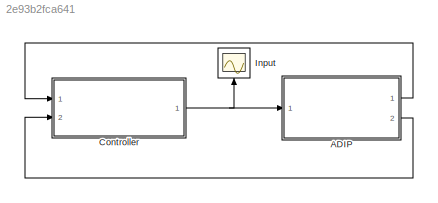
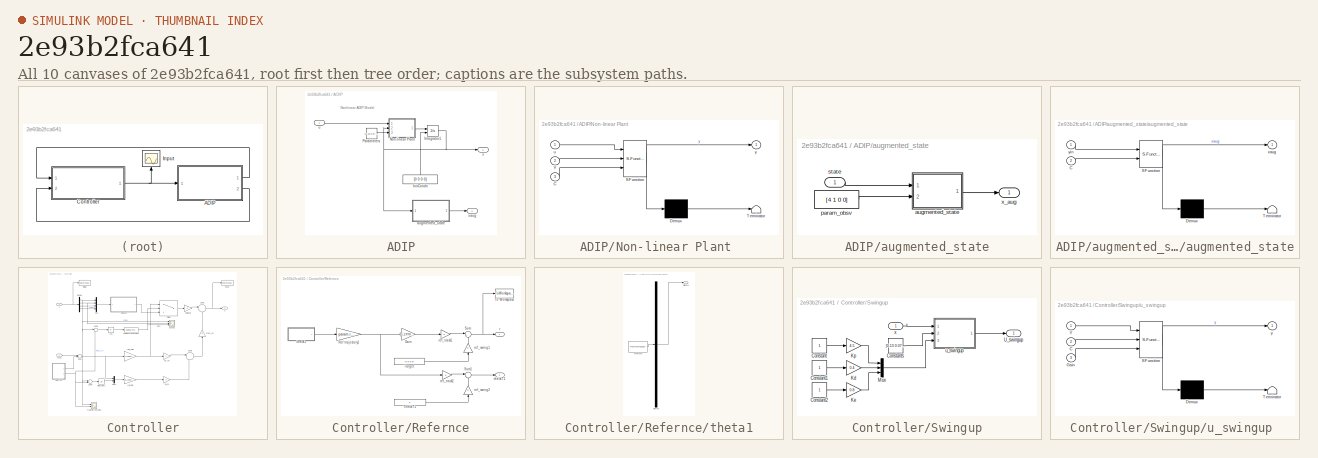
[diagram: thumbnail index - all 10 canvases of the model, root first then tree order]
MODEL slx_2e93b2fca641
KIND model
CONFIG AbsTol = auto
CONFIG EnableMultiTasking = off
CONFIG FixedStep = 0.005
CONFIG MaxStep = 0.2
CONFIG MinStep = auto
CONFIG RelTol = 1e-3
CONFIG SampleTimeConstraint = Unconstrained
CONFIG Solver = ode4
CONFIG SolverName = ode4
CONFIG StartTime = 0.0
CONFIG StopTime = 25
BLOCK [SubSystem] ADIP
  Ports = [1, 2]
  RequestExecContextInheritance = off
BLOCK [Constant] ADIP/InitCondn
  Value = [0 0 0 0]
BLOCK [Integrator] ADIP/Integrator1
  InitialCondition = param.theta0
  InitialConditionSource = external
  Ports = [2, 1]
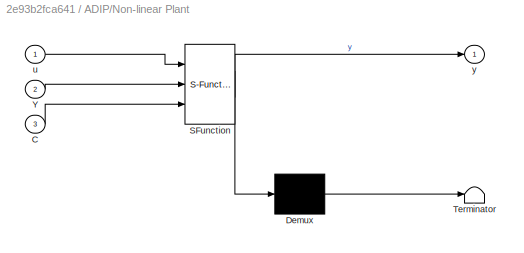
BLOCK [SubSystem] ADIP/Non-linear Plant 
  ErrorFcn = Stateflow.Translate.translate
  PermitHierarchicalResolution = ExplicitOnly
  Ports = [3, 1]
  RequestExecContextInheritance = off
  SFBlockType = MATLAB Function
  TreatAsAtomicUnit = on
BLOCK [Demux] ADIP/Non-linear Plant / Demux 
  Outputs = 1
  Ports = [1, 1]
BLOCK [S-Function] ADIP/Non-linear Plant / SFunction 
  EnableBusSupport = on
  FunctionName = sf_sfun
  PortCounts = [3 2]
  Ports = [3, 2]
  SFcnIsStateOwnerBlock = off
  SFunctionDeploymentMode = off
  Tag = Stateflow S-Function GA_LQi_sim 3
BLOCK [Terminator] ADIP/Non-linear Plant / Terminator 
BLOCK [Inport] ADIP/Non-linear Plant /C
  IconDisplay = Port number
  Port = 3
BLOCK [Inport] ADIP/Non-linear Plant /Y
  IconDisplay = Port number
  Port = 2
BLOCK [Inport] ADIP/Non-linear Plant /u
  IconDisplay = Port number
BLOCK [Outport] ADIP/Non-linear Plant /y
  IconDisplay = Port number
BLOCK [Constant] ADIP/Parameters
  Value = [0.13 0.07 0.04 0.154 0.186 -9.81 0.0003 0.000202 0.00015814 0.000737 0.00289 1.41e-05 4.5 0.4 0.8]
BLOCK [SubSystem] ADIP/augmented_state
  Ports = [1, 1]
  RequestExecContextInheritance = off
BLOCK [SubSystem] ADIP/augmented_state/augmented_state
  ErrorFcn = Stateflow.Translate.translate
  PermitHierarchicalResolution = ExplicitOnly
  Ports = [2, 1]
  RequestExecContextInheritance = off
  SFBlockType = MATLAB Function
  TreatAsAtomicUnit = on
BLOCK [Demux] ADIP/augmented_state/augmented_state/ Demux 
  Outputs = 1
  Ports = [1, 1]
BLOCK [S-Function] ADIP/augmented_state/augmented_state/ SFunction 
  EnableBusSupport = on
  FunctionName = sf_sfun
  PortCounts = [2 2]
  Ports = [2, 2]
  SFcnIsStateOwnerBlock = off
  SFunctionDeploymentMode = off
  Tag = Stateflow S-Function GA_LQi_sim 6
BLOCK [Terminator] ADIP/augmented_state/augmented_state/ Terminator 
BLOCK [Inport] ADIP/augmented_state/augmented_state/C
  IconDisplay = Port number
  Port = 2
BLOCK [Outport] ADIP/augmented_state/augmented_state/xaug
  IconDisplay = Port number
BLOCK [Inport] ADIP/augmented_state/augmented_state/yin
  IconDisplay = Port number
BLOCK [Constant] ADIP/augmented_state/param_obsv
  Value = [4 1 0 0]
BLOCK [Inport] ADIP/augmented_state/state
  IconDisplay = Port number
BLOCK [Outport] ADIP/augmented_state/x_aug
  IconDisplay = Port number
BLOCK [Inport] ADIP/u
  IconDisplay = Port number
BLOCK [Outport] ADIP/x
  IconDisplay = Port number
BLOCK [Outport] ADIP/xaug
  IconDisplay = Port number
  Port = 2
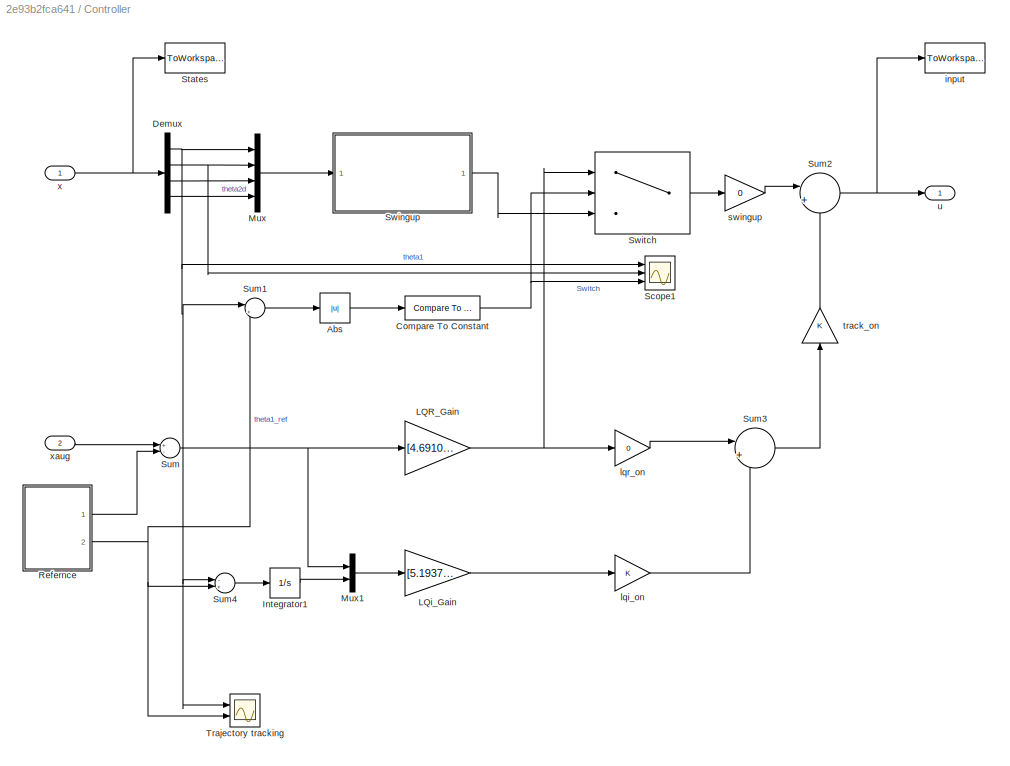
BLOCK [SubSystem] Controller
  Ports = [2, 1]
  RequestExecContextInheritance = off
BLOCK [Abs] Controller/Abs
  Commented = on
  SaturateOnIntegerOverflow = off
BLOCK [Reference] Controller/Compare To Constant  REF=simulink/Logic and Bit
Operations/Compare
To Constant
  Commented = on
  Ports = [1, 1]
  SourceBlock = simulink/Logic and Bit\nOperations/Compare\nTo Constant
  SourceProductBaseCode = SL
  SourceProductName = Simulink
  SourceType = Compare To Constant
BLOCK [Demux] Controller/Demux
  DisplayOption = bar
  Ports = [1, 4]
BLOCK [Integrator] Controller/Integrator1
  Ports = [1, 1]
BLOCK [Gain] Controller/LQR_Gain
  Gain = [4.69105812161154 14.9392898979114 1.33286732839246 1.59354530426798]
  Multiplication = Matrix(K*u)
  OutDataTypeStr = Inherit: Inherit via internal rule
  ParamDataTypeStr = Inherit: Inherit via internal rule
  SaturateOnIntegerOverflow = off
BLOCK [Gain] Controller/LQi_Gain
  Gain = [5.1937465260465 15.5114677034942 1.39662706176635 1.65359146034935 -1.86712951097344]
  Multiplication = Matrix(K*u)
  OutDataTypeStr = Inherit: Inherit via internal rule
  ParamDataTypeStr = Inherit: Inherit via internal rule
  SaturateOnIntegerOverflow = off
BLOCK [Mux] Controller/Mux
  DisplayOption = bar
  Ports = [4, 1]
BLOCK [Mux] Controller/Mux1
  DisplayOption = bar
  Inputs = 2
  Ports = [2, 1]
BLOCK [SubSystem] Controller/Refernce
  Ports = [0, 2]
  RequestExecContextInheritance = off
BLOCK [Gain] Controller/Refernce/Gain
  Gain = [1,zeros(1,param.nObsv-1)]
  OutDataTypeStr = Inherit: Inherit via internal rule
  ParamDataTypeStr = Inherit: Inherit via internal rule
  SaturateOnIntegerOverflow = off
BLOCK [Gain] Controller/Refernce/Ref trajectory1
  Gain = param.rmax
  OutDataTypeStr = Inherit: Inherit via internal rule
  ParamDataTypeStr = Inherit: Inherit via internal rule
  SaturateOnIntegerOverflow = off
BLOCK [Sum] Controller/Refernce/Sum
  IconShape = round
  InputSameDT = off
  Inputs = |++
  OutDataTypeStr = Inherit: Inherit via internal rule
  Ports = [2, 1]
  SaturateOnIntegerOverflow = off
BLOCK [Sum] Controller/Refernce/Sum1
  IconShape = round
  InputSameDT = off
  Inputs = |++
  OutDataTypeStr = Inherit: Inherit via internal rule
  Ports = [2, 1]
  SaturateOnIntegerOverflow = off
BLOCK [Constant] Controller/Refernce/Target
  Value = [0 0 0 0]
BLOCK [Constant] Controller/Refernce/ThetaT1
  Value = 0
BLOCK [ToWorkspace] Controller/Refernce/To Workspace
  FixptAsFi = on
  MaxDataPoints = inf
  Ports = [1]
  SampleTime = -1
  VariableName = ThetaRef
BLOCK [Outport] Controller/Refernce/r
  IconDisplay = Port number
BLOCK [Gain] Controller/Refernce/ref_swing1
  Gain = 0
  OutDataTypeStr = Inherit: Inherit via internal rule
  ParamDataTypeStr = Inherit: Inherit via internal rule
  SaturateOnIntegerOverflow = off
BLOCK [Gain] Controller/Refernce/ref_swing2
  Gain = 0
  OutDataTypeStr = Inherit: Inherit via internal rule
  ParamDataTypeStr = Inherit: Inherit via internal rule
  SaturateOnIntegerOverflow = off
BLOCK [Gain] Controller/Refernce/ref_track1
  OutDataTypeStr = Inherit: Inherit via internal rule
  ParamDataTypeStr = Inherit: Inherit via internal rule
  SaturateOnIntegerOverflow = off
BLOCK [Gain] Controller/Refernce/ref_track2
  OutDataTypeStr = Inherit: Inherit via internal rule
  ParamDataTypeStr = Inherit: Inherit via internal rule
  SaturateOnIntegerOverflow = off
BLOCK [SubSystem] Controller/Refernce/theta1
  ClipboardFcn = sigbuilder_block('clipboard');
  CloseFcn = sigbuilder_block('close');
  ContinueFcn = sigbuilder_block('continue');
  CopyFcn = sigbuilder_block('copy');
  DeleteFcn = sigbuilder_block('delete');
  LoadFcn = sigbuilder_block('load');
  MaskHideContents = on
  ModelCloseFcn = sigbuilder_block('modelClose');
  NameChangeFcn = sigbuilder_block('namechange');
  OpenFcn = sigbuilder_block('open',[5.5 30 1909 958 ]);
  PauseFcn = sigbuilder_block('pause');
  Ports = [0, 1]
  PreSaveFcn = sigbuilder_block('preSave');
  RequestExecContextInheritance = off
  StartFcn = sigbuilder_block('start');
  StopFcn = sigbuilder_block('stop');
  Tag = STV Subsys
BLOCK [Demux] Controller/Refernce/theta1/Demux
  Outputs = 1
  Ports = [1, 1]
  Tag = STV Demux
BLOCK [FromWorkspace] Controller/Refernce/theta1/FromWs
  SampleTime = 0
  Tag = STV FromWs
  VariableName = tuvar
  ZeroCross = on
BLOCK [Outport] Controller/Refernce/theta1/Signal 1
  IconDisplay = Port number
  Tag = STV Outport
BLOCK [Outport] Controller/Refernce/thetaT1
  IconDisplay = Port number
  Port = 2
BLOCK [Scope] Controller/Scope1
  Commented = on
  Floating = off
  NumInputPorts = 3
  Ports = [3]
  ScopeSpecificationString = Simulink.scopes.TimeScopeBlockCfg('CurrentConfiguration', extmgr.ConfigurationSet(extmgr.Configuration('Core','General UI',true,'FigureColor',[1 1 1]),extmgr.Configuration('Core','Source UI',true),extmgr.Configuration('Sources','WiredSimulink',true,'DataLoggingVariableName','ScopeData1'),extmgr.Configuration('Visuals','Time Domain',true,'SerializedDisplays',{struct('MinYLimReal','-1.52699','MaxYLi...<+1904ch>
BLOCK [ToWorkspace] Controller/States
  FixptAsFi = on
  MaxDataPoints = inf
  Ports = [1]
  SampleTime = -1
  VariableName = state
BLOCK [Sum] Controller/Sum
  InputSameDT = off
  Inputs = +-
  OutDataTypeStr = Inherit: Inherit via internal rule
  Ports = [2, 1]
  SaturateOnIntegerOverflow = off
BLOCK [Sum] Controller/Sum1
  Commented = on
  IconShape = round
  InputSameDT = off
  Inputs = |+-
  OutDataTypeStr = Inherit: Inherit via internal rule
  Ports = [2, 1]
  SaturateOnIntegerOverflow = off
BLOCK [Sum] Controller/Sum2
  IconShape = round
  InputSameDT = off
  Inputs = |++
  OutDataTypeStr = Inherit: Inherit via internal rule
  Ports = [2, 1]
  SaturateOnIntegerOverflow = off
BLOCK [Sum] Controller/Sum3
  IconShape = round
  InputSameDT = off
  Inputs = |++
  OutDataTypeStr = Inherit: Inherit via internal rule
  Ports = [2, 1]
  SaturateOnIntegerOverflow = off
BLOCK [Sum] Controller/Sum4
  InputSameDT = off
  Inputs = -+
  OutDataTypeStr = Inherit: Inherit via internal rule
  Ports = [2, 1]
  SaturateOnIntegerOverflow = off
BLOCK [SubSystem] Controller/Swingup
  Commented = on
  Ports = [1, 1]
  RequestExecContextInheritance = off
BLOCK [Constant] Controller/Swingup/Constant
BLOCK [Constant] Controller/Swingup/Constant1
BLOCK [Constant] Controller/Swingup/Constant2
BLOCK [Constant] Controller/Swingup/Constants
  Value = [0.13 0.07 0.04 0.154 0.186 -9.81 0.0003 0.000202 0.00015814 0.000737 0.00289 1.41e-05 4.5 0.4 0.8]
BLOCK [Gain] Controller/Swingup/Kd
  Gain = 0.4
  OutDataTypeStr = Inherit: Inherit via internal rule
  ParamDataTypeStr = Inherit: Inherit via internal rule
  SaturateOnIntegerOverflow = off
BLOCK [Gain] Controller/Swingup/Ke
  Gain = 0.8
  OutDataTypeStr = Inherit: Inherit via internal rule
  ParamDataTypeStr = Inherit: Inherit via internal rule
  SaturateOnIntegerOverflow = off
BLOCK [Gain] Controller/Swingup/Kp
  Gain = 4.5
  OutDataTypeStr = Inherit: Inherit via internal rule
  ParamDataTypeStr = Inherit: Inherit via internal rule
  SaturateOnIntegerOverflow = off
BLOCK [Mux] Controller/Swingup/Mux
  DisplayOption = bar
  Inputs = 3
  Ports = [3, 1]
BLOCK [Outport] Controller/Swingup/U_swingup
  IconDisplay = Port number
BLOCK [SubSystem] Controller/Swingup/u_swingup 
  ErrorFcn = Stateflow.Translate.translate
  PermitHierarchicalResolution = ExplicitOnly
  Ports = [3, 1]
  RequestExecContextInheritance = off
  SFBlockType = MATLAB Function
  TreatAsAtomicUnit = on
BLOCK [Demux] Controller/Swingup/u_swingup / Demux 
  Outputs = 1
  Ports = [1, 1]
BLOCK [S-Function] Controller/Swingup/u_swingup / SFunction 
  EnableBusSupport = on
  FunctionName = sf_sfun
  PortCounts = [3 2]
  Ports = [3, 2]
  SFcnIsStateOwnerBlock = off
  SFunctionDeploymentMode = off
  Tag = Stateflow S-Function GA_LQi_sim 1
BLOCK [Terminator] Controller/Swingup/u_swingup / Terminator 
BLOCK [Inport] Controller/Swingup/u_swingup /C
  IconDisplay = Port number
  Port = 2
BLOCK [Inport] Controller/Swingup/u_swingup /Gain
  IconDisplay = Port number
  Port = 3
BLOCK [Inport] Controller/Swingup/u_swingup /Y
  IconDisplay = Port number
BLOCK [Outport] Controller/Swingup/u_swingup /y
  IconDisplay = Port number
BLOCK [Inport] Controller/Swingup/x
  IconDisplay = Port number
BLOCK [Switch] Controller/Switch
  Commented = on
  Criteria = u2 > Threshold
  InputSameDT = off
  SaturateOnIntegerOverflow = off
  Threshold = 0.5
BLOCK [Scope] Controller/Trajectory tracking
  Floating = off
  NumInputPorts = 2
  Ports = [2]
  ScopeSpecificationString = Simulink.scopes.TimeScopeBlockCfg('CurrentConfiguration', extmgr.ConfigurationSet(extmgr.Configuration('Core','General UI',true,'FigureColor',[1 1 1]),extmgr.Configuration('Core','Source UI',true),extmgr.Configuration('Sources','WiredSimulink',true,'DataLoggingVariableName','ScopeData2'),extmgr.Configuration('Visuals','Time Domain',true,'SerializedDisplays',{struct('MinYLimReal','-1.11746','MaxYLi...<+1832ch>
BLOCK [ToWorkspace] Controller/input
  FixptAsFi = on
  MaxDataPoints = inf
  Ports = [1]
  SampleTime = -1
  VariableName = input
BLOCK [Gain] Controller/lqi_on
  OutDataTypeStr = Inherit: Inherit via internal rule
  ParamDataTypeStr = Inherit: Inherit via internal rule
  SaturateOnIntegerOverflow = off
BLOCK [Gain] Controller/lqr_on
  Gain = 0
  OutDataTypeStr = Inherit: Inherit via internal rule
  ParamDataTypeStr = Inherit: Inherit via internal rule
  SaturateOnIntegerOverflow = off
BLOCK [Gain] Controller/swingup
  Commented = on
  Gain = 0
  OutDataTypeStr = Inherit: Inherit via internal rule
  ParamDataTypeStr = Inherit: Inherit via internal rule
  SaturateOnIntegerOverflow = off
BLOCK [Gain] Controller/track_on
  OutDataTypeStr = Inherit: Inherit via internal rule
  ParamDataTypeStr = Inherit: Inherit via internal rule
  SaturateOnIntegerOverflow = off
BLOCK [Outport] Controller/u
  IconDisplay = Port number
BLOCK [Inport] Controller/x
  IconDisplay = Port number
BLOCK [Inport] Controller/xaug
  IconDisplay = Port number
  Port = 2
BLOCK [Scope] Input
  Floating = off
  NumInputPorts = 1
  Ports = [1]
  ScopeSpecificationString = Simulink.scopes.TimeScopeBlockCfg('CurrentConfiguration', extmgr.ConfigurationSet(extmgr.Configuration('Core','General UI',true),extmgr.Configuration('Core','Source UI',true),extmgr.Configuration('Sources','WiredSimulink',true),extmgr.Configuration('Visuals','Time Domain',true,'SerializedDisplays',{struct('MinYLimReal','-0.00117','MaxYLimReal','0.00062','YLabelReal','','MinYLimMag','0.00000','MaxY...<+1395ch>
ANNOTATION ADIP: Nonlinear ADIP Model
LINE ADIP/InitCondn:1 -> ADIP/Integrator1:2
NET ADIP/Integrator1:1 -> ADIP/Non-linear Plant :2, ADIP/augmented_state:1, ADIP/x:1
LINE ADIP/Non-linear Plant :1 -> ADIP/Integrator1:1
LINE ADIP/Parameters:1 -> ADIP/Non-linear Plant :3
LINE ADIP/augmented_state/augmented_state:1 -> ADIP/augmented_state/x_aug:1
LINE ADIP/augmented_state/param_obsv:1 -> ADIP/augmented_state/augmented_state:2
LINE ADIP/augmented_state/state:1 -> ADIP/augmented_state/augmented_state:1
LINE ADIP/augmented_state:1 -> ADIP/xaug:1
LINE ADIP/u:1 -> ADIP/Non-linear Plant :1
LINE ADIP:1 -> Controller:1
LINE ADIP:2 -> Controller:2
LINE Controller/Abs:1 -> Controller/Compare To Constant:1
NET Controller/Compare To Constant:1 -> Controller/Scope1:3, Controller/Switch:2
NET Controller/Demux:1 -> Controller/Mux:1, Controller/Scope1:1, Controller/Sum1:1, Controller/Sum4:1, Controller/Trajectory tracking:1
NET Controller/Demux:2 -> Controller/Mux:2, Controller/Scope1:2
LINE Controller/Demux:3 -> Controller/Mux:3
LINE Controller/Demux:4 -> Controller/Mux:4
LINE Controller/Integrator1:1 -> Controller/Mux1:2
NET Controller/LQR_Gain:1 -> Controller/Switch:1, Controller/lqr_on:1
LINE Controller/LQi_Gain:1 -> Controller/lqi_on:1
LINE Controller/Mux1:1 -> Controller/LQi_Gain:1
LINE Controller/Mux:1 -> Controller/Swingup:1
LINE Controller/Refernce/Gain:1 -> Controller/Refernce/ref_track1:1
NET Controller/Refernce/Ref trajectory1:1 -> Controller/Refernce/Gain:1, Controller/Refernce/ref_track2:1
LINE Controller/Refernce/Sum1:1 -> Controller/Refernce/thetaT1:1
NET Controller/Refernce/Sum:1 -> Controller/Refernce/To Workspace:1, Controller/Refernce/r:1
LINE Controller/Refernce/Target:1 -> Controller/Refernce/ref_swing1:1
LINE Controller/Refernce/ThetaT1:1 -> Controller/Refernce/ref_swing2:1
LINE Controller/Refernce/ref_swing1:1 -> Controller/Refernce/Sum:2
LINE Controller/Refernce/ref_swing2:1 -> Controller/Refernce/Sum1:2
LINE Controller/Refernce/ref_track1:1 -> Controller/Refernce/Sum:1
LINE Controller/Refernce/ref_track2:1 -> Controller/Refernce/Sum1:1
LINE Controller/Refernce/theta1:1 -> Controller/Refernce/Ref trajectory1:1
LINE Controller/Refernce:1 -> Controller/Sum:2
NET Controller/Refernce:2 -> Controller/Sum1:2, Controller/Sum4:2, Controller/Trajectory tracking:2
LINE Controller/Sum1:1 -> Controller/Abs:1
NET Controller/Sum2:1 -> Controller/input:1, Controller/u:1
LINE Controller/Sum3:1 -> Controller/track_on:1
LINE Controller/Sum4:1 -> Controller/Integrator1:1
NET Controller/Sum:1 -> Controller/LQR_Gain:1, Controller/Mux1:1
LINE Controller/Swingup/Constant1:1 -> Controller/Swingup/Kd:1
LINE Controller/Swingup/Constant2:1 -> Controller/Swingup/Ke:1
LINE Controller/Swingup/Constant:1 -> Controller/Swingup/Kp:1
LINE Controller/Swingup/Constants:1 -> Controller/Swingup/u_swingup :2
LINE Controller/Swingup/Kd:1 -> Controller/Swingup/Mux:2
LINE Controller/Swingup/Ke:1 -> Controller/Swingup/Mux:3
LINE Controller/Swingup/Kp:1 -> Controller/Swingup/Mux:1
LINE Controller/Swingup/Mux:1 -> Controller/Swingup/u_swingup :3
LINE Controller/Swingup/u_swingup :1 -> Controller/Swingup/U_swingup:1
LINE Controller/Swingup/x:1 -> Controller/Swingup/u_swingup :1
LINE Controller/Swingup:1 -> Controller/Switch:3
LINE Controller/Switch:1 -> Controller/swingup:1
LINE Controller/lqi_on:1 -> Controller/Sum3:2
LINE Controller/lqr_on:1 -> Controller/Sum3:1
LINE Controller/swingup:1 -> Controller/Sum2:1
LINE Controller/track_on:1 -> Controller/Sum2:2
NET Controller/x:1 -> Controller/Demux:1, Controller/States:1
LINE Controller/xaug:1 -> Controller/Sum:1
NET Controller:1 -> ADIP:1, Input:1
note: NET lines group one-source signal fan-out (src -> all destinations, sorted); 1:1 wires keep LINE
CHART Controller/Swingup/u_swingup
 states=1 transitions=1
  STATE_LABEL 'eML_blk_kernel()'
  STATE_LABEL 'SCRIPT:\nfunction y = fcn(Y, C, Gain)\nm1=C(1); % Mass of arm\nm2=C(2); % Mass of pendulum\nmh = C(3); % Mass of Hinge\nl1  = C(4); % Length of arm\nl2 = C(5); % Length of pendulum\ng_ = C(6);\nJ_arm = C(7);\nJ_pend = C(8);\nJ_motor = C(9);\nJ_sensor = C(10);\nfv1 = C(11);\nfv2 = C(12);\n\ny1 = Y(1);  % actual theta1          \ny2 = Y(2);  % actual theta2\ny3 = Y(3);  % actual theta1d\ny4 = Y(4);  % actual theta2d\n...<+1196ch>'
CHART ADIP/Non-linear 
Plant
 states=1 transitions=1
  STATE_LABEL 'eML_blk_kernel()'
  STATE_LABEL 'SCRIPT:\nfunction y = fcn(u,Y,C)\nm1=C(1); % Mass of arm\nm2=C(2); % Mass of pendulum\nmh = C(3); % Mass of Hinge\nl1  = C(4); % Length of arm\nl2 = C(5); % Length of pendulum\ng_ = C(6);\nJ_arm = C(7);\nJ_pend = C(8);\nJ_motor = C(9);\nJ_sensor = C(10);\nfv1 = C(11);\nfv2 = C(12);\n\ny1 = Y(1);  % actual theta1          \ny2 = Y(2);  % actual theta2\ny3 = Y(3);  % actual theta1d\ny4 = Y(4);  % actual theta2d\n\ndy1 ...<+1551ch>'
CHART ADIP/augmented_state/augmented_state states=1 transitions=1
  STATE_LABEL 'eML_blk_kernel()'
  STATE_LABEL 'SCRIPT:\nfunction xaug = fcn(yin,C)\n\n% x1 = yin(1); x2 = yin(2); x3 = yin(3); x4 = yin(4);\n% \n% \n% % P = size(param.A,1);\n% \n% % switch P\n% %     case 4\n% %         Psi = []; % 4 just the states\n% %     case 6 \n% %         Psi = [sin(x1).*cos(x1) ones(size(x1,1),1)];  % 6 - sin*cos\n% %     case 7\n% %         Psi = [sin(x1) cos(x1) ones(size(x1,1),1)];  % 7 - states + sin and cos\n% %     case 8\n% % ...<+3608ch>'
